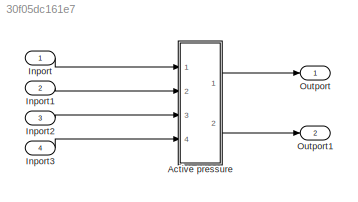
MODEL slx_30f05dc161e7
KIND model
CONFIG AbsTol = auto
CONFIG EnableMultiTasking = on
CONFIG FixedStep = 0.002
CONFIG MaxStep = auto
CONFIG MinStep = auto
CONFIG RelTol = 1e-3
CONFIG SampleTimeConstraint = Unconstrained
CONFIG Solver = FixedStepDiscrete
CONFIG SolverName = FixedStepDiscrete
CONFIG StartTime = 0.0
CONFIG StopTime = inf
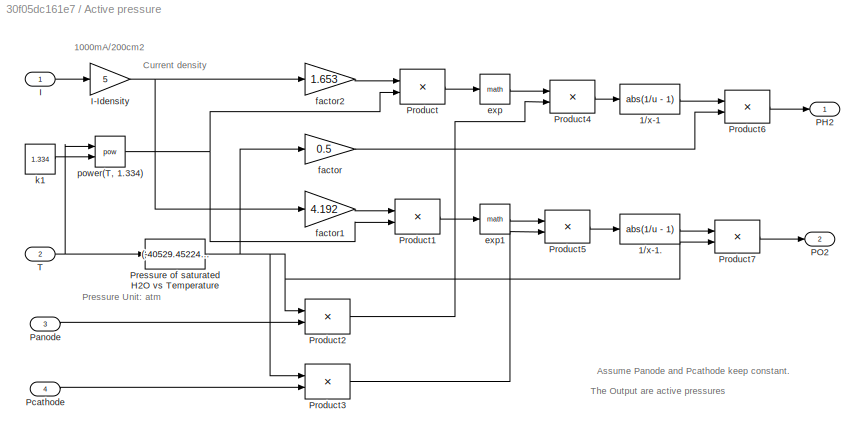
BLOCK [SubSystem] Active pressure
  Ports = [4, 2]
  RequestExecContextInheritance = off
BLOCK [Fcn] Active pressure/1//x-1
  Expr = abs(1/u - 1)
BLOCK [Fcn] Active pressure/1//x-1.
  Expr = abs(1/u - 1)
BLOCK [Inport] Active pressure/I
BLOCK [Gain] Active pressure/I-Idensity
  Gain = 5
  OutDataTypeStr = Inherit: Same as input
  ParamDataTypeStr = Inherit: Same as input
  SaturateOnIntegerOverflow = on
BLOCK [Outport] Active pressure/PH2
BLOCK [Outport] Active pressure/PO2
  Port = 2
BLOCK [Inport] Active pressure/Panode
  Port = 3
BLOCK [Inport] Active pressure/Pcathode
  Port = 4
BLOCK [Fcn] Active pressure/Pressure of saturated H2O vs Temperature
  Expr = (-40529.4522405347 + 401.94033912153*u-1.33430273535993*(u^2) + 0.00148378443819808*(u^3))/760
BLOCK [Product] Active pressure/Product
  Inputs = */
  OutDataTypeStr = Inherit: Same as first input
  Ports = [2, 1]
  SaturateOnIntegerOverflow = on
BLOCK [Product] Active pressure/Product1
  Inputs = */
  OutDataTypeStr = Inherit: Same as first input
  Ports = [2, 1]
  SaturateOnIntegerOverflow = on
BLOCK [Product] Active pressure/Product2
  Inputs = */
  OutDataTypeStr = Inherit: Same as first input
  Ports = [2, 1]
  SaturateOnIntegerOverflow = on
BLOCK [Product] Active pressure/Product3
  Inputs = */
  OutDataTypeStr = Inherit: Same as first input
  Ports = [2, 1]
  SaturateOnIntegerOverflow = on
BLOCK [Product] Active pressure/Product4
  OutDataTypeStr = Inherit: Same as first input
  Ports = [2, 1]
  SaturateOnIntegerOverflow = on
BLOCK [Product] Active pressure/Product5
  OutDataTypeStr = Inherit: Same as first input
  Ports = [2, 1]
  SaturateOnIntegerOverflow = on
BLOCK [Product] Active pressure/Product6
  OutDataTypeStr = Inherit: Same as first input
  Ports = [2, 1]
  SaturateOnIntegerOverflow = on
BLOCK [Product] Active pressure/Product7
  OutDataTypeStr = Inherit: Same as first input
  Ports = [2, 1]
  SaturateOnIntegerOverflow = on
BLOCK [Inport] Active pressure/T
  Port = 2
BLOCK [Math] Active pressure/exp
  Ports = [1, 1]
  SignedPower = on
BLOCK [Math] Active pressure/exp1
  Ports = [1, 1]
  SignedPower = on
BLOCK [Gain] Active pressure/factor
  Gain = 0.5
  OutDataTypeStr = Inherit: Same as input
  ParamDataTypeStr = Inherit: Same as input
  SaturateOnIntegerOverflow = on
BLOCK [Gain] Active pressure/factor1
  Gain = 4.192
  OutDataTypeStr = Inherit: Same as input
  ParamDataTypeStr = Inherit: Same as input
  SaturateOnIntegerOverflow = on
BLOCK [Gain] Active pressure/factor2
  Gain = 1.653
  OutDataTypeStr = Inherit: Same as input
  ParamDataTypeStr = Inherit: Same as input
  SaturateOnIntegerOverflow = on
BLOCK [Constant] Active pressure/k1
  Value = 1.334
BLOCK [Math] Active pressure/power(T, 1.334)
  Operator = pow
  Ports = [2, 1]
  SignedPower = on
BLOCK [Inport] Inport
BLOCK [Inport] Inport1
  Port = 2
BLOCK [Inport] Inport2
  Port = 3
BLOCK [Inport] Inport3
  Port = 4
BLOCK [Outport] Outport
BLOCK [Outport] Outport1
  Port = 2
ANNOTATION Active pressure: 1000mA/200cm2
ANNOTATION Active pressure: Assume Panode and Pcathode keep constant.
ANNOTATION Active pressure: Current density
ANNOTATION Active pressure: Pressure Unit: atm
ANNOTATION Active pressure: The Output are active pressures
LINE Active pressure/1//x-1.:1 -> Active pressure/Product7:1
LINE Active pressure/1//x-1:1 -> Active pressure/Product6:1
NET Active pressure/I-Idensity:1 -> Active pressure/factor1:1, Active pressure/factor2:1
LINE Active pressure/I:1 -> Active pressure/I-Idensity:1
LINE Active pressure/Panode:1 -> Active pressure/Product2:2
LINE Active pressure/Pcathode:1 -> Active pressure/Product3:2
NET Active pressure/Pressure of saturated H2O vs Temperature:1 -> Active pressure/Product2:1, Active pressure/Product3:1, Active pressure/Product7:2, Active pressure/factor:1
LINE Active pressure/Product1:1 -> Active pressure/exp1:1
LINE Active pressure/Product2:1 -> Active pressure/Product4:2
LINE Active pressure/Product3:1 -> Active pressure/Product5:2
LINE Active pressure/Product4:1 -> Active pressure/1//x-1:1
LINE Active pressure/Product5:1 -> Active pressure/1//x-1.:1
LINE Active pressure/Product6:1 -> Active pressure/PH2:1
LINE Active pressure/Product7:1 -> Active pressure/PO2:1
LINE Active pressure/Product:1 -> Active pressure/exp:1
NET Active pressure/T:1 -> Active pressure/Pressure of saturated H2O vs Temperature:1, Active pressure/power(T, 1.334):1
LINE Active pressure/exp1:1 -> Active pressure/Product5:1
LINE Active pressure/exp:1 -> Active pressure/Product4:1
LINE Active pressure/factor1:1 -> Active pressure/Product1:1
LINE Active pressure/factor2:1 -> Active pressure/Product:1
LINE Active pressure/factor:1 -> Active pressure/Product6:2
LINE Active pressure/k1:1 -> Active pressure/power(T, 1.334):2
NET Active pressure/power(T, 1.334):1 -> Active pressure/Product1:2, Active pressure/Product:2
LINE Active pressure:1 -> Outport:1
LINE Active pressure:2 -> Outport1:1
LINE Inport1:1 -> Active pressure:2
LINE Inport2:1 -> Active pressure:3
LINE Inport3:1 -> Active pressure:4
LINE Inport:1 -> Active pressure:1
note: NET lines group one-source signal fan-out (src -> all destinations, sorted); 1:1 wires keep LINE
